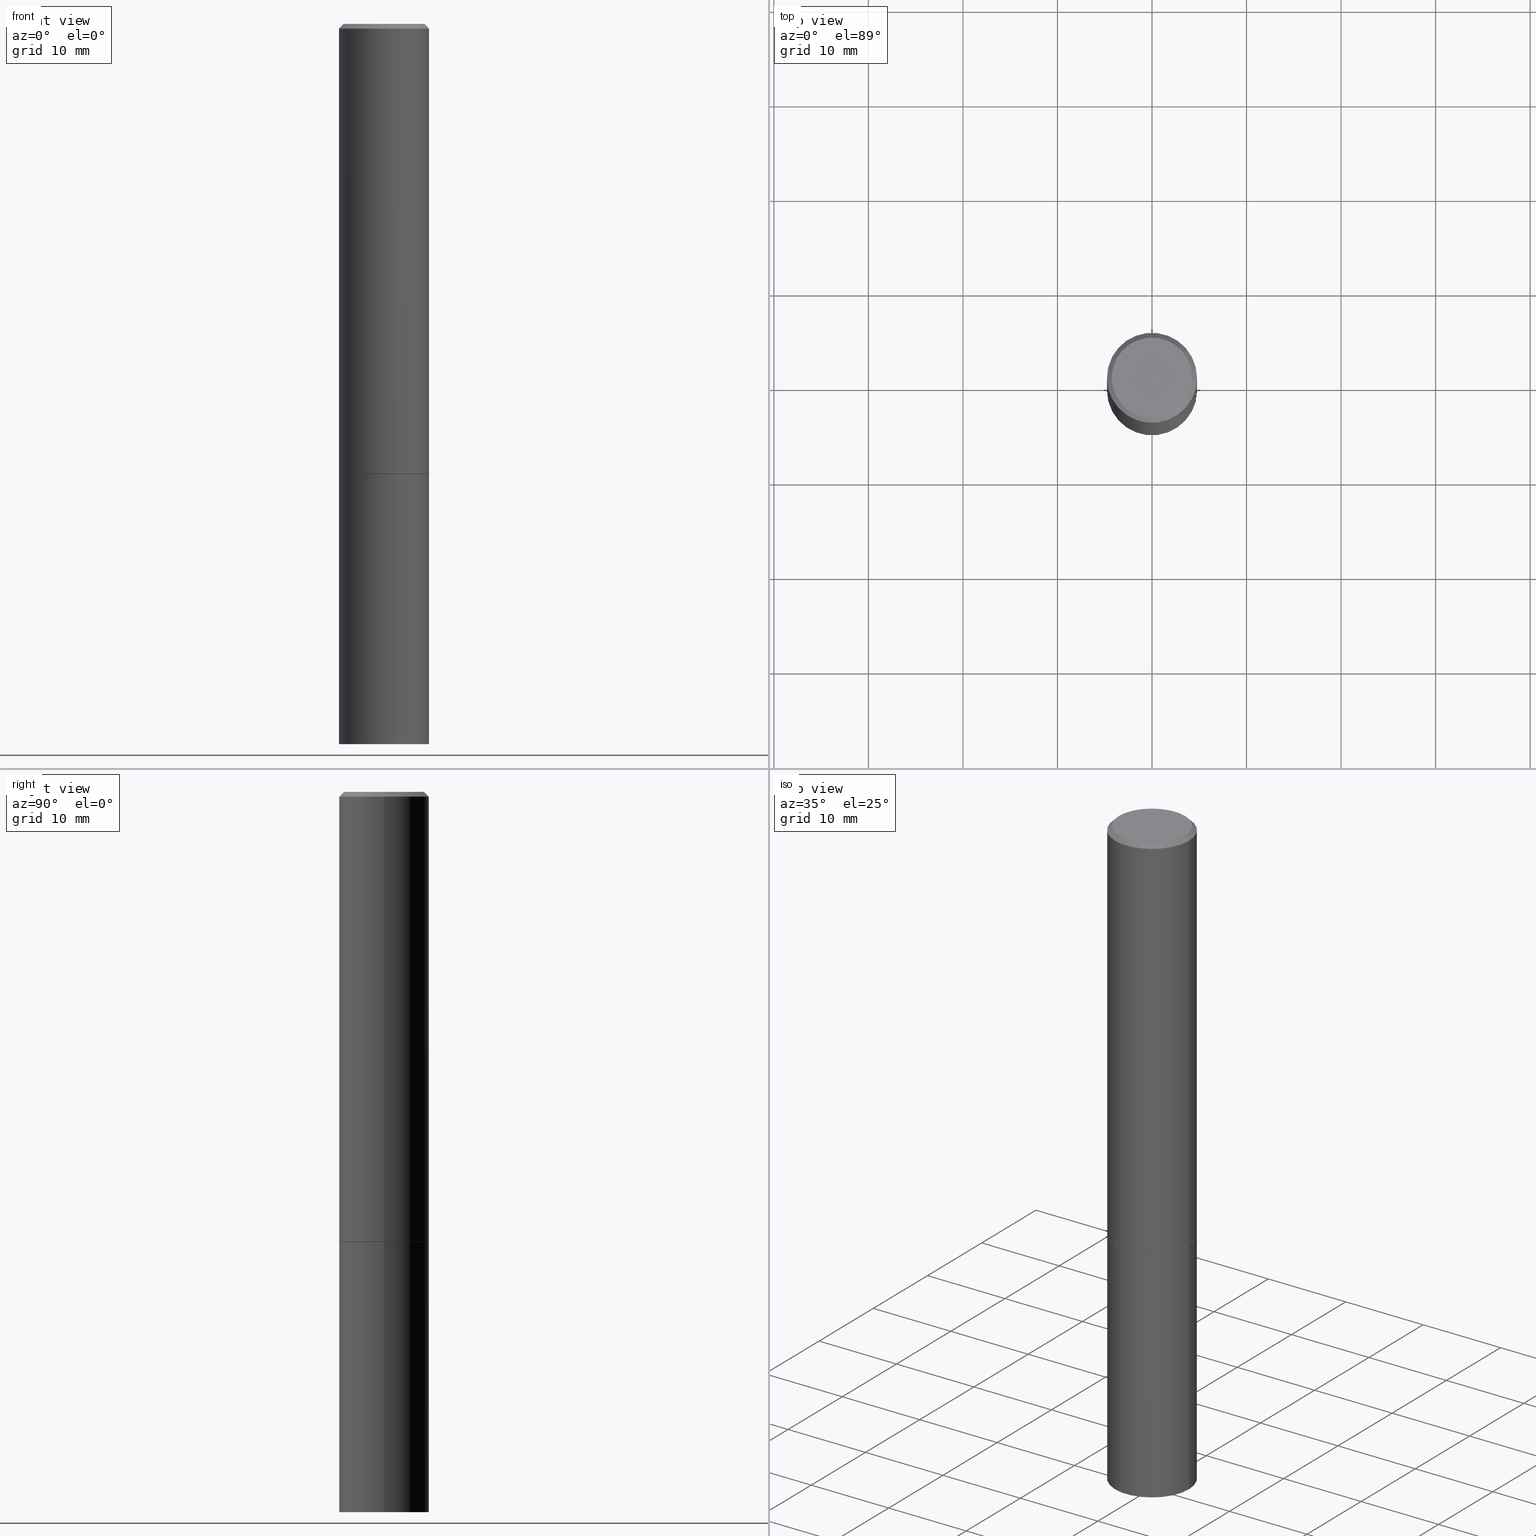
[diagram: canonical four-view strip — front | top / right | iso, engineering-drawing reading convention]
A machine part, canonical four-view strip (front | top / right | iso — engineering-drawing reading convention). The complete STEP part file that produces these views, byte-faithful:
ISO-10303-21;
HEADER;
FILE_DESCRIPTION (( 'STEP AP203' ),
    '1' );
FILE_NAME ('31854.STEP',
    '2024-02-27T13:50:10',
    ( '' ),
    ( '' ),
    'SwSTEP 2.0',
    'SolidWorks 2023',
    '' );
FILE_SCHEMA (( 'CONFIG_CONTROL_DESIGN' ));
ENDSEC;

DATA;
#1 = APPROVAL ( #317, 'UNSPECIFIED' ) ;
#2 = CIRCLE ( 'NONE', #280, 0.1875000000000000278 ) ;
#3 = AXIS2_PLACEMENT_3D ( 'NONE', #56, #360, #201 ) ;
#4 = APPROVAL_STATUS ( 'not_yet_approved' ) ;
#5 = EDGE_LOOP ( 'NONE', ( #300, #191 ) ) ;
#6 = ORIENTED_EDGE ( 'NONE', *, *, #144, .T. ) ;
#7 = AXIS2_PLACEMENT_3D ( 'NONE', #55, #22, #329 ) ;
#8 = CC_DESIGN_APPROVAL ( #27, ( #85 ) ) ;
#9 = VERTEX_POINT ( 'NONE', #347 ) ;
#10 = CARTESIAN_POINT ( 'NONE',  ( 4.890937612370283668E-31, -6.982962677686305168E-17, -0.02000000000000004205 ) ) ;
#11 = ADVANCED_FACE ( 'NONE', ( #156 ), #263, .T. ) ;
#12 = DATE_AND_TIME ( #345, #106 ) ;
#13 = ORIENTED_EDGE ( 'NONE', *, *, #34, .T. ) ;
#14 = AXIS2_PLACEMENT_3D ( 'NONE', #361, #252, #111 ) ;
#15 = VERTEX_POINT ( 'NONE', #189 ) ;
#16 = PLANE ( 'NONE',  #172 ) ;
#17 = CARTESIAN_POINT ( 'NONE',  ( 4.890937612370283668E-31, -6.982962677686305168E-17, -0.02000000000000004205 ) ) ;
#18 = ORIENTED_EDGE ( 'NONE', *, *, #314, .F. ) ;
#19 = EDGE_CURVE ( 'NONE', #15, #348, #299, .T. ) ;
#20 = FACE_OUTER_BOUND ( 'NONE', #60, .T. ) ;
#21 = DIRECTION ( 'NONE',  ( 0.7071067811866320607, -2.468850131083142557E-15, 0.7071067811864629737 ) ) ;
#22 = DIRECTION ( 'NONE',  ( -2.445468806185136597E-29, 3.491481338843145583E-15, 1.000000000000000000 ) ) ;
#23 = CARTESIAN_POINT ( 'NONE',  ( 4.890937612370283668E-31, -6.982962677686305168E-17, -0.02000000000000004205 ) ) ;
#24 = AXIS2_PLACEMENT_3D ( 'NONE', #10, #128, #101 ) ;
#25 = FACE_OUTER_BOUND ( 'NONE', #157, .T. ) ;
#26 = PERSON_AND_ORGANIZATION ( #358, #220 ) ;
#27 = APPROVAL ( #4, 'UNSPECIFIED' ) ;
#28 = CARTESIAN_POINT ( 'NONE',  ( 0.1875000000000000278, -7.855833012397073715E-15, -1.875000000000000000 ) ) ;
#29 = CARTESIAN_POINT ( 'NONE',  ( -0.1674999999999997879, 1.204561061900879272E-15, -8.301862719484101980E-30 ) ) ;
#30 = PERSON_AND_ORGANIZATION_ROLE ( 'classification_officer' ) ;
#31 = CONICAL_SURFACE ( 'NONE', #14, 0.1864999999999999714, 0.7853981633975678500 ) ;
#32 = EDGE_CURVE ( 'NONE', #249, #50, #131, .T. ) ;
#33 = PERSON_AND_ORGANIZATION ( #358, #220 ) ;
#34 = EDGE_CURVE ( 'NONE', #130, #246, #68, .T. ) ;
#35 = ORIENTED_EDGE ( 'NONE', *, *, #342, .F. ) ;
#36 = FACE_OUTER_BOUND ( 'NONE', #215, .T. ) ;
#37 = CYLINDRICAL_SURFACE ( 'NONE', #328, 0.1875000000000000278 ) ;
#38 = DIRECTION ( 'NONE',  ( -2.445468806185136597E-29, 3.491481338843145583E-15, 1.000000000000000000 ) ) ;
#39 = EDGE_LOOP ( 'NONE', ( #122, #107, #166, #235 ) ) ;
#40 = ORIENTED_EDGE ( 'NONE', *, *, #74, .T. ) ;
#41 = CARTESIAN_POINT ( 'NONE',  ( 0.1864999999999999714, -7.848850049719386123E-15, -1.874999999999999778 ) ) ;
#42 = AXIS2_PLACEMENT_3D ( 'NONE', #251, #226, #308 ) ;
#43 = VERTEX_POINT ( 'NONE', #282 ) ;
#44 = CALENDAR_DATE ( 2024, 27, 2 ) ;
#45 = CARTESIAN_POINT ( 'NONE',  ( -0.1875000000000000278, 1.332267629550188046E-15, -9.223003294227947991E-30 ) ) ;
#46 = ORIENTED_EDGE ( 'NONE', *, *, #100, .T. ) ;
#47 = DESIGN_CONTEXT ( 'detailed design', #136, 'design' ) ;
#48 = MANIFOLD_SOLID_BREP ( 'Body-Move/Copy2[1]', #304 ) ;
#49 = DIRECTION ( 'NONE',  ( -2.445468806185136877E-29, 3.491481338843145188E-15, 1.000000000000000000 ) ) ;
#50 = VERTEX_POINT ( 'NONE', #29 ) ;
#51 = CYLINDRICAL_SURFACE ( 'NONE', #254, 0.1874999999999999167 ) ;
#52 = DIRECTION ( 'NONE',  ( 1.000000000000000000, -6.982962677686266711E-15, 0.000000000000000000 ) ) ;
#53 = CC_DESIGN_APPROVAL ( #274, ( #330 ) ) ;
#54 = EDGE_CURVE ( 'NONE', #15, #320, #146, .T. ) ;
#55 = CARTESIAN_POINT ( 'NONE',  ( 0.000000000000000000, 0.000000000000000000, 0.000000000000000000 ) ) ;
#56 = CARTESIAN_POINT ( 'NONE',  ( 0.000000000000000000, 0.000000000000000000, 0.000000000000000000 ) ) ;
#57 = CARTESIAN_POINT ( 'NONE',  ( -0.1864999999999999714, -5.221365308138311867E-15, -1.874999999999999778 ) ) ;
#58 = ADVANCED_FACE ( 'NONE', ( #363 ), #236, .T. ) ;
#59 = DIRECTION ( 'NONE',  ( -2.445468806185136877E-29, 3.491481338843145188E-15, 1.000000000000000000 ) ) ;
#60 = EDGE_LOOP ( 'NONE', ( #13, #6, #162, #97 ) ) ;
#61 = CIRCLE ( 'NONE', #234, 0.1874999999999997780 ) ;
#62 = APPROVAL_PERSON_ORGANIZATION ( #294, #1, #161 ) ;
#63 = FACE_OUTER_BOUND ( 'NONE', #81, .T. ) ;
#64 = APPLICATION_CONTEXT ( 'configuration controlled 3d designs of mechanical parts and assemblies' ) ;
#65 = EDGE_CURVE ( 'NONE', #135, #130, #255, .T. ) ;
#66 = VECTOR ( 'NONE', #285, 39.37007874015748143 ) ;
#67 = EDGE_LOOP ( 'NONE', ( #222, #180, #35, #182 ) ) ;
#68 = CIRCLE ( 'NONE', #305, 0.1875000000000000278 ) ;
#69 = APPROVAL_PERSON_ORGANIZATION ( #351, #274, #321 ) ;
#70 = DIRECTION ( 'NONE',  ( 0.7071067811865466846, -7.319954787623252890E-15, -0.7071067811865483499 ) ) ;
#71 = COORDINATED_UNIVERSAL_TIME_OFFSET ( 5, 0, .BEHIND. ) ;
#72 = CARTESIAN_POINT ( 'NONE',  ( 0.000000000000000000, 0.000000000000000000, 0.000000000000000000 ) ) ;
#73 = DIRECTION ( 'NONE',  ( 0.000000000000000000, 0.000000000000000000, 1.000000000000000000 ) ) ;
#74 = EDGE_CURVE ( 'NONE', #130, #43, #202, .T. ) ;
#75 = VECTOR ( 'NONE', #80, 39.37007874015748143 ) ;
#76 = ORIENTED_EDGE ( 'NONE', *, *, #118, .F. ) ;
#77 = LOCAL_TIME ( 8, 50, 10.00000000000000000, #99 ) ;
#78 = DIRECTION ( 'NONE',  ( 1.000000000000000000, 0.000000000000000000, 0.000000000000000000 ) ) ;
#79 = VERTEX_POINT ( 'NONE', #134 ) ;
#80 = DIRECTION ( 'NONE',  ( -0.7071067811865466846, 2.468850131082247989E-15, -0.7071067811865483499 ) ) ;
#81 = EDGE_LOOP ( 'NONE', ( #266, #18 ) ) ;
#82 = CARTESIAN_POINT ( 'NONE',  ( 4.585254011597131119E-29, -6.546527510330898707E-15, -1.875000000000000000 ) ) ;
#83 = DIRECTION ( 'NONE',  ( 1.000000000000000000, -6.982962677686269077E-15, 0.000000000000000000 ) ) ;
#84 = CIRCLE ( 'NONE', #335, 0.1674999999999997879 ) ;
#85 = SECURITY_CLASSIFICATION ( '', '', #364 ) ;
#86 = DIRECTION ( 'NONE',  ( 1.000000000000000000, -6.982962677686265922E-15, 4.876176775795935793E-29 ) ) ;
#87 = DIRECTION ( 'NONE',  ( 1.000000000000000000, -6.982962677686266711E-15, 0.000000000000000000 ) ) ;
#88 = DATE_AND_TIME ( #333, #141 ) ;
#89 = DIRECTION ( 'NONE',  ( 1.000000000000000000, -6.982962677686265133E-15, 0.000000000000000000 ) ) ;
#90 = PERSON_AND_ORGANIZATION ( #358, #220 ) ;
#91 = AXIS2_PLACEMENT_3D ( 'NONE', #259, #165, #286 ) ;
#92 = ADVANCED_FACE ( 'NONE', ( #25 ), #31, .T. ) ;
#93 = CIRCLE ( 'NONE', #42, 0.1864999999999999714 ) ;
#94 = CC_DESIGN_DATE_AND_TIME_ASSIGNMENT ( #158, #221, ( #85 ) ) ;
#95 = DIRECTION ( 'NONE',  ( 1.000000000000000000, -6.982962677686266711E-15, 0.000000000000000000 ) ) ;
#96 = CONICAL_SURFACE ( 'NONE', #316, 0.1864999999999999714, 0.7853981633975678500 ) ;
#97 = ORIENTED_EDGE ( 'NONE', *, *, #74, .F. ) ;
#98 = SHAPE_DEFINITION_REPRESENTATION ( #229, #243 ) ;
#99 = COORDINATED_UNIVERSAL_TIME_OFFSET ( 5, 0, .BEHIND. ) ;
#100 = EDGE_CURVE ( 'NONE', #79, #43, #115, .T. ) ;
#101 = DIRECTION ( 'NONE',  ( -1.000000000000000000, 6.982962677686265133E-15, 0.000000000000000000 ) ) ;
#102 = ORIENTED_EDGE ( 'NONE', *, *, #54, .F. ) ;
#103 = CARTESIAN_POINT ( 'NONE',  ( -0.1875000000000000278, -7.178218133879978893E-15, -1.875000000000000000 ) ) ;
#104 = AXIS2_PLACEMENT_3D ( 'NONE', #319, #153, #95 ) ;
#105 = LINE ( 'NONE', #210, #75 ) ;
#106 = LOCAL_TIME ( 8, 50, 10.00000000000000000, #271 ) ;
#107 = ORIENTED_EDGE ( 'NONE', *, *, #54, .T. ) ;
#108 = ADVANCED_FACE ( 'NONE', ( #227 ), #96, .T. ) ;
#109 = LINE ( 'NONE', #57, #66 ) ;
#110 = ORIENTED_EDGE ( 'NONE', *, *, #314, .T. ) ;
#111 = DIRECTION ( 'NONE',  ( 1.000000000000000000, -6.982962677686269077E-15, 0.000000000000000000 ) ) ;
#112 = CYLINDRICAL_SURFACE ( 'NONE', #3, 0.1875000000000000278 ) ;
#113 = DIRECTION ( 'NONE',  ( 1.000000000000000000, -6.982962677686261189E-15, 0.000000000000000000 ) ) ;
#114 = DIRECTION ( 'NONE',  ( -1.000000000000000000, 6.982962677686265133E-15, 0.000000000000000000 ) ) ;
#115 = CIRCLE ( 'NONE', #178, 0.1874999999999997780 ) ;
#116 = ADVANCED_FACE ( 'NONE', ( #175 ), #313, .F. ) ;
#117 = ORIENTED_EDGE ( 'NONE', *, *, #144, .F. ) ;
#118 = EDGE_CURVE ( 'NONE', #50, #79, #105, .T. ) ;
#119 = AXIS2_PLACEMENT_3D ( 'NONE', #138, #261, #258 ) ;
#120 = ORIENTED_EDGE ( 'NONE', *, *, #232, .F. ) ;
#121 = ORIENTED_EDGE ( 'NONE', *, *, #32, .T. ) ;
#122 = ORIENTED_EDGE ( 'NONE', *, *, #19, .F. ) ;
#123 = ORIENTED_EDGE ( 'NONE', *, *, #126, .T. ) ;
#124 = VECTOR ( 'NONE', #70, 39.37007874015748143 ) ;
#125 = LOCAL_TIME ( 8, 50, 10.00000000000000000, #223 ) ;
#126 = EDGE_CURVE ( 'NONE', #50, #249, #84, .T. ) ;
#127 = ORIENTED_EDGE ( 'NONE', *, *, #256, .T. ) ;
#128 = DIRECTION ( 'NONE',  ( 2.445468806185136597E-29, -3.491481338843145583E-15, -1.000000000000000000 ) ) ;
#129 = ORIENTED_EDGE ( 'NONE', *, *, #211, .T. ) ;
#130 = VERTEX_POINT ( 'NONE', #151 ) ;
#131 = CIRCLE ( 'NONE', #91, 0.1674999999999997879 ) ;
#132 = LINE ( 'NONE', #353, #124 ) ;
#133 = CC_DESIGN_APPROVAL ( #1, ( #207 ) ) ;
#134 = CARTESIAN_POINT ( 'NONE',  ( -0.1874999999999997780, 1.239475875289310330E-15, -0.02000000000000004205 ) ) ;
#135 = VERTEX_POINT ( 'NONE', #41 ) ;
#136 = APPLICATION_CONTEXT ( 'configuration controlled 3d designs of mechanical parts and assemblies' ) ;
#137 = DIRECTION ( 'NONE',  ( 1.000000000000000000, -6.982962677686265133E-15, 0.000000000000000000 ) ) ;
#138 = CARTESIAN_POINT ( 'NONE',  ( 7.336406418555409790E-29, -1.047444401652943635E-14, -3.000000000000000444 ) ) ;
#139 = DIRECTION ( 'NONE',  ( 2.445468806185136597E-29, -3.491481338843145583E-15, -1.000000000000000000 ) ) ;
#140 = CC_DESIGN_DATE_AND_TIME_ASSIGNMENT ( #341, #240, ( #330 ) ) ;
#141 = LOCAL_TIME ( 8, 50, 10.00000000000000000, #71 ) ;
#142 = DIRECTION ( 'NONE',  ( -2.445468806185136597E-29, 3.491481338843145583E-15, 1.000000000000000000 ) ) ;
#143 = DIRECTION ( 'NONE',  ( -2.445468806185136597E-29, 3.491481338843145583E-15, 1.000000000000000000 ) ) ;
#144 = EDGE_CURVE ( 'NONE', #246, #79, #315, .T. ) ;
#145 = CLOSED_SHELL ( 'NONE', ( #92, #176, #58, #11, #250, #108, #217, #264 ) ) ;
#146 = CIRCLE ( 'NONE', #219, 0.1875000000000000278 ) ;
#147 = DIRECTION ( 'NONE',  ( 2.438088387897960049E-29, -3.491481338843145188E-15, -1.000000000000000000 ) ) ;
#148 = ORIENTED_EDGE ( 'NONE', *, *, #100, .F. ) ;
#149 = CIRCLE ( 'NONE', #203, 0.1875000000000000278 ) ;
#150 = EDGE_CURVE ( 'NONE', #320, #218, #163, .T. ) ;
#151 = CARTESIAN_POINT ( 'NONE',  ( 0.1875000000000000278, -7.852341531058230708E-15, -1.874000000000000110 ) ) ;
#152 = ORIENTED_EDGE ( 'NONE', *, *, #296, .F. ) ;
#153 = DIRECTION ( 'NONE',  ( -2.445468806185136597E-29, 3.491481338843145583E-15, 1.000000000000000000 ) ) ;
#154 = AXIS2_PLACEMENT_3D ( 'NONE', #179, #147, #270 ) ;
#155 = COORDINATED_UNIVERSAL_TIME_OFFSET ( 5, 0, .BEHIND. ) ;
#156 = FACE_OUTER_BOUND ( 'NONE', #352, .T. ) ;
#157 = EDGE_LOOP ( 'NONE', ( #129, #186, #303, #225 ) ) ;
#158 = DATE_AND_TIME ( #44, #199 ) ;
#159 = DIRECTION ( 'NONE',  ( -2.445468806185136877E-29, 3.491481338843145188E-15, 1.000000000000000000 ) ) ;
#160 = EDGE_CURVE ( 'NONE', #249, #43, #132, .T. ) ;
#161 = APPROVAL_ROLE ( '' ) ;
#162 = ORIENTED_EDGE ( 'NONE', *, *, #256, .F. ) ;
#163 = LINE ( 'NONE', #238, #359 ) ;
#164 = CARTESIAN_POINT ( 'NONE',  ( 0.000000000000000000, 0.000000000000000000, 0.000000000000000000 ) ) ;
#165 = DIRECTION ( 'NONE',  ( -2.445468806185136597E-29, 3.491481338843145583E-15, 1.000000000000000000 ) ) ;
#166 = ORIENTED_EDGE ( 'NONE', *, *, #150, .T. ) ;
#167 = DIRECTION ( 'NONE',  ( 1.000000000000000000, -6.982962677686265922E-15, 4.876176775795935793E-29 ) ) ;
#168 = ADVANCED_FACE ( 'NONE', ( #181 ), #37, .T. ) ;
#169 = DIRECTION ( 'NONE',  ( -1.000000000000000000, 6.982962677686265922E-15, -4.876176775795935793E-29 ) ) ;
#170 = CYLINDRICAL_SURFACE ( 'NONE', #7, 0.1874999999999999167 ) ;
#171 = VECTOR ( 'NONE', #49, 39.37007874015748143 ) ;
#172 = AXIS2_PLACEMENT_3D ( 'NONE', #253, #306, #169 ) ;
#173 = APPROVAL_DATE_TIME ( #88, #1 ) ;
#174 = DIRECTION ( 'NONE',  ( -2.438088387897960049E-29, 3.491481338843145188E-15, 1.000000000000000000 ) ) ;
#175 = FACE_OUTER_BOUND ( 'NONE', #5, .T. ) ;
#176 = ADVANCED_FACE ( 'NONE', ( #20 ), #170, .T. ) ;
#177 = PERSON_AND_ORGANIZATION ( #358, #220 ) ;
#178 = AXIS2_PLACEMENT_3D ( 'NONE', #17, #334, #89 ) ;
#179 = CARTESIAN_POINT ( 'NONE',  ( 1.309305502066220959E-15, 0.1874999999999934497, -1.875000000000000666 ) ) ;
#180 = ORIENTED_EDGE ( 'NONE', *, *, #19, .T. ) ;
#181 = FACE_OUTER_BOUND ( 'NONE', #67, .T. ) ;
#182 = ORIENTED_EDGE ( 'NONE', *, *, #150, .F. ) ;
#183 = DIRECTION ( 'NONE',  ( 1.000000000000000000, -6.982962677686266711E-15, 4.876176775795935793E-29 ) ) ;
#184 = MECHANICAL_CONTEXT ( 'NONE', #64, 'mechanical' ) ;
#185 = UNCERTAINTY_MEASURE_WITH_UNIT (LENGTH_MEASURE( 1.000000000000000082E-05 ), #214, 'distance_accuracy_value', 'NONE');
#186 = ORIENTED_EDGE ( 'NONE', *, *, #232, .T. ) ;
#187 = AXIS2_PLACEMENT_3D ( 'NONE', #23, #139, #114 ) ;
#188 = EDGE_CURVE ( 'NONE', #320, #15, #287, .T. ) ;
#189 = CARTESIAN_POINT ( 'NONE',  ( -0.1875000000000000278, -7.178218133879978893E-15, -3.000000000000000444 ) ) ;
#190 = PERSON_AND_ORGANIZATION_ROLE ( 'creator' ) ;
#191 = ORIENTED_EDGE ( 'NONE', *, *, #357, .T. ) ;
#192 = LENGTH_MEASURE_WITH_UNIT ( LENGTH_MEASURE( 0.02539999999999999897 ), #344 );
#193 = DIRECTION ( 'NONE',  ( -2.445468806185136597E-29, 3.491481338843145583E-15, 1.000000000000000000 ) ) ;
#194 = CALENDAR_DATE ( 2024, 27, 2 ) ;
#195 = EDGE_LOOP ( 'NONE', ( #120, #110, #277, #152 ) ) ;
#196 = CARTESIAN_POINT ( 'NONE',  ( -0.1874999999999999722, -1.974165198334270073E-15, -1.874000000000000110 ) ) ;
#197 = EDGE_LOOP ( 'NONE', ( #354, #322, #127, #76 ) ) ;
#198 = VECTOR ( 'NONE', #21, 39.37007874015748143 ) ;
#199 = LOCAL_TIME ( 8, 50, 10.00000000000000000, #155 ) ;
#200 =( NAMED_UNIT ( * ) SI_UNIT ( $, .STERADIAN. ) SOLID_ANGLE_UNIT ( ) );
#201 = DIRECTION ( 'NONE',  ( 1.000000000000000000, -6.982962677686265922E-15, 4.876176775795935793E-29 ) ) ;
#202 = LINE ( 'NONE', #355, #206 ) ;
#203 = AXIS2_PLACEMENT_3D ( 'NONE', #209, #38, #323 ) ;
#204 = CC_DESIGN_SECURITY_CLASSIFICATION ( #85, ( #207 ) ) ;
#205 = DIRECTION ( 'NONE',  ( -2.445468806185136597E-29, 3.491481338843145583E-15, 1.000000000000000000 ) ) ;
#206 = VECTOR ( 'NONE', #59, 39.37007874015748143 ) ;
#207 = PRODUCT_DEFINITION_FORMATION_WITH_SPECIFIED_SOURCE ( 'ANY', '', #257, .NOT_KNOWN. ) ;
#208 = CC_DESIGN_PERSON_AND_ORGANIZATION_ASSIGNMENT ( #298, #190, ( #330 ) ) ;
#209 = CARTESIAN_POINT ( 'NONE',  ( 4.585254011597131119E-29, -6.546527510330898707E-15, -1.875000000000000000 ) ) ;
#210 = CARTESIAN_POINT ( 'NONE',  ( -0.1874999999999997780, 1.239475875289310330E-15, -0.02000000000000004205 ) ) ;
#211 = EDGE_CURVE ( 'NONE', #135, #9, #93, .T. ) ;
#212 = CALENDAR_DATE ( 2024, 27, 2 ) ;
#213 = EDGE_LOOP ( 'NONE', ( #117, #283, #40, #148 ) ) ;
#214 =( CONVERSION_BASED_UNIT ( 'INCH', #192 ) LENGTH_UNIT ( ) NAMED_UNIT ( #244 ) );
#215 = EDGE_LOOP ( 'NONE', ( #338, #102 ) ) ;
#216 = APPROVAL_DATE_TIME ( #239, #274 ) ;
#217 = ADVANCED_FACE ( 'NONE', ( #63 ), #233, .F. ) ;
#218 = VERTEX_POINT ( 'NONE', #28 ) ;
#219 = AXIS2_PLACEMENT_3D ( 'NONE', #337, #289, #113 ) ;
#220 = ORGANIZATION ( 'UNSPECIFIED', 'UNSPECIFIED', '' ) ;
#221 = DATE_TIME_ROLE ( 'classification_date' ) ;
#222 = ORIENTED_EDGE ( 'NONE', *, *, #188, .T. ) ;
#223 = COORDINATED_UNIVERSAL_TIME_OFFSET ( 5, 0, .BEHIND. ) ;
#224 = FACE_OUTER_BOUND ( 'NONE', #213, .T. ) ;
#225 = ORIENTED_EDGE ( 'NONE', *, *, #65, .F. ) ;
#226 = DIRECTION ( 'NONE',  ( -2.445468806185136597E-29, 3.491481338843145583E-15, 1.000000000000000000 ) ) ;
#227 = FACE_OUTER_BOUND ( 'NONE', #195, .T. ) ;
#228 = CARTESIAN_POINT ( 'NONE',  ( 0.1674999999999997879, -1.252653207992876908E-15, 8.469775550109228175E-30 ) ) ;
#229 = PRODUCT_DEFINITION_SHAPE ( 'NONE', 'NONE',  #330 ) ;
#230 = CARTESIAN_POINT ( 'NONE',  ( 4.582808542790945516E-29, -6.543036028992054911E-15, -1.874000000000000110 ) ) ;
#231 = CARTESIAN_POINT ( 'NONE',  ( 4.582808542790945516E-29, -6.543036028992054911E-15, -1.874000000000000110 ) ) ;
#232 = EDGE_CURVE ( 'NONE', #9, #246, #109, .T. ) ;
#233 = PLANE ( 'NONE',  #310 ) ;
#234 = AXIS2_PLACEMENT_3D ( 'NONE', #281, #325, #137 ) ;
#235 = ORIENTED_EDGE ( 'NONE', *, *, #357, .F. ) ;
#236 = CONICAL_SURFACE ( 'NONE', #187, 0.1874999999999997780, 0.7853981633974471688 ) ;
#237 = DIRECTION ( 'NONE',  ( -1.000000000000000000, 6.982962677686265922E-15, -4.876176775795935793E-29 ) ) ;
#238 = CARTESIAN_POINT ( 'NONE',  ( 0.1875000000000000278, -1.309305502066175008E-15, 9.142831454617381013E-30 ) ) ;
#239 = DATE_AND_TIME ( #212, #77 ) ;
#240 = DATE_TIME_ROLE ( 'creation_date' ) ;
#241 = CC_DESIGN_PERSON_AND_ORGANIZATION_ASSIGNMENT ( #90, #262, ( #207 ) ) ;
#242 = ORIENTED_EDGE ( 'NONE', *, *, #118, .T. ) ;
#243 = ADVANCED_BREP_SHAPE_REPRESENTATION ( '31854', ( #48, #292, #248 ), #343 ) ;
#244 = DIMENSIONAL_EXPONENTS ( 1.000000000000000000, 0.000000000000000000, 0.000000000000000000, 0.000000000000000000, 0.000000000000000000, 0.000000000000000000, 0.000000000000000000 ) ;
#245 = APPROVAL_STATUS ( 'not_yet_approved' ) ;
#246 = VERTEX_POINT ( 'NONE', #196 ) ;
#247 = AXIS2_PLACEMENT_3D ( 'NONE', #295, #301, #237 ) ;
#248 = AXIS2_PLACEMENT_3D ( 'NONE', #164, #73, #78 ) ;
#249 = VERTEX_POINT ( 'NONE', #228 ) ;
#250 = ADVANCED_FACE ( 'NONE', ( #224 ), #51, .T. ) ;
#251 = CARTESIAN_POINT ( 'NONE',  ( 4.585254011597130558E-29, -6.546527510330897918E-15, -1.874999999999999778 ) ) ;
#252 = DIRECTION ( 'NONE',  ( -2.445468806185136597E-29, 3.491481338843145583E-15, 1.000000000000000000 ) ) ;
#253 = CARTESIAN_POINT ( 'NONE',  ( 1.169646248512448215E-15, 0.1674999999999997879, -5.848231242562260795E-16 ) ) ;
#254 = AXIS2_PLACEMENT_3D ( 'NONE', #284, #143, #86 ) ;
#255 = LINE ( 'NONE', #332, #198 ) ;
#256 = EDGE_CURVE ( 'NONE', #43, #79, #61, .T. ) ;
#257 = PRODUCT ( '31854', '31854', '', ( #184 ) ) ;
#258 = DIRECTION ( 'NONE',  ( 1.000000000000000000, -6.982962677686261189E-15, 0.000000000000000000 ) ) ;
#259 = CARTESIAN_POINT ( 'NONE',  ( 0.000000000000000000, 0.000000000000000000, 0.000000000000000000 ) ) ;
#260 = PERSON_AND_ORGANIZATION_ROLE ( 'creator' ) ;
#261 = DIRECTION ( 'NONE',  ( -2.445468806185136597E-29, 3.491481338843145583E-15, 1.000000000000000000 ) ) ;
#262 = PERSON_AND_ORGANIZATION_ROLE ( 'design_supplier' ) ;
#263 = CONICAL_SURFACE ( 'NONE', #24, 0.1874999999999997780, 0.7853981633974471688 ) ;
#264 = ADVANCED_FACE ( 'NONE', ( #302 ), #16, .F. ) ;
#265 = CIRCLE ( 'NONE', #104, 0.1875000000000000278 ) ;
#266 = ORIENTED_EDGE ( 'NONE', *, *, #211, .F. ) ;
#267 = APPROVAL_PERSON_ORGANIZATION ( #33, #27, #293 ) ;
#268 = PLANE ( 'NONE',  #247 ) ;
#269 =( NAMED_UNIT ( * ) PLANE_ANGLE_UNIT ( ) SI_UNIT ( $, .RADIAN. ) );
#270 = DIRECTION ( 'NONE',  ( -1.000000000000000000, 6.982962677686265922E-15, -4.876176775795935793E-29 ) ) ;
#271 = COORDINATED_UNIVERSAL_TIME_OFFSET ( 5, 0, .BEHIND. ) ;
#272 = AXIS2_PLACEMENT_3D ( 'NONE', #362, #205, #340 ) ;
#273 = DIRECTION ( 'NONE',  ( -2.445468806185136877E-29, 3.491481338843145188E-15, 1.000000000000000000 ) ) ;
#274 = APPROVAL ( #245, 'UNSPECIFIED' ) ;
#275 = APPLICATION_PROTOCOL_DEFINITION ( 'international standard', 'config_control_design', 1994, #64 ) ;
#276 = APPLICATION_PROTOCOL_DEFINITION ( 'international standard', 'config_control_design', 1994, #136 ) ;
#277 = ORIENTED_EDGE ( 'NONE', *, *, #65, .T. ) ;
#278 = PERSON_AND_ORGANIZATION_ROLE ( 'design_owner' ) ;
#279 = ADVANCED_FACE ( 'NONE', ( #356 ), #112, .T. ) ;
#280 = AXIS2_PLACEMENT_3D ( 'NONE', #230, #331, #87 ) ;
#281 = CARTESIAN_POINT ( 'NONE',  ( 4.890937612370283668E-31, -6.982962677686305168E-17, -0.02000000000000004205 ) ) ;
#282 = CARTESIAN_POINT ( 'NONE',  ( 0.1874999999999997780, -1.356173001359023691E-15, -0.02000000000000004205 ) ) ;
#283 = ORIENTED_EDGE ( 'NONE', *, *, #296, .T. ) ;
#284 = CARTESIAN_POINT ( 'NONE',  ( 0.000000000000000000, 0.000000000000000000, 0.000000000000000000 ) ) ;
#285 = DIRECTION ( 'NONE',  ( -0.7071067811866320607, 7.493145998870660238E-15, 0.7071067811864629737 ) ) ;
#286 = DIRECTION ( 'NONE',  ( 1.000000000000000000, -6.982962677686266711E-15, 4.876176775795935793E-29 ) ) ;
#287 = CIRCLE ( 'NONE', #119, 0.1875000000000000278 ) ;
#288 = CARTESIAN_POINT ( 'NONE',  ( 0.000000000000000000, 0.000000000000000000, 0.000000000000000000 ) ) ;
#289 = DIRECTION ( 'NONE',  ( -2.445468806185136597E-29, 3.491481338843145583E-15, 1.000000000000000000 ) ) ;
#290 = EDGE_LOOP ( 'NONE', ( #123, #121 ) ) ;
#291 = CC_DESIGN_PERSON_AND_ORGANIZATION_ASSIGNMENT ( #177, #30, ( #85 ) ) ;
#292 = MANIFOLD_SOLID_BREP ( 'Body-Move/Copy2[2]', #145 ) ;
#293 = APPROVAL_ROLE ( '' ) ;
#294 = PERSON_AND_ORGANIZATION ( #358, #220 ) ;
#295 = CARTESIAN_POINT ( 'NONE',  ( 1.309305502066248372E-15, 0.1874999999999895361, -3.000000000000000888 ) ) ;
#296 = EDGE_CURVE ( 'NONE', #246, #130, #2, .T. ) ;
#297 = CARTESIAN_POINT ( 'NONE',  ( -0.1874999999999999167, 1.332267629550187257E-15, -9.223003294227943787E-30 ) ) ;
#298 = PERSON_AND_ORGANIZATION ( #358, #220 ) ;
#299 = LINE ( 'NONE', #45, #339 ) ;
#300 = ORIENTED_EDGE ( 'NONE', *, *, #342, .T. ) ;
#301 = DIRECTION ( 'NONE',  ( 2.438088387897960049E-29, -3.491481338843145188E-15, -1.000000000000000000 ) ) ;
#302 = FACE_OUTER_BOUND ( 'NONE', #290, .T. ) ;
#303 = ORIENTED_EDGE ( 'NONE', *, *, #34, .F. ) ;
#304 = CLOSED_SHELL ( 'NONE', ( #168, #336, #116, #279 ) ) ;
#305 = AXIS2_PLACEMENT_3D ( 'NONE', #231, #309, #52 ) ;
#306 = DIRECTION ( 'NONE',  ( 2.438088387897960049E-29, -3.491481338843145188E-15, -1.000000000000000000 ) ) ;
#307 = CC_DESIGN_PERSON_AND_ORGANIZATION_ASSIGNMENT ( #26, #260, ( #207 ) ) ;
#308 = DIRECTION ( 'NONE',  ( 1.000000000000000000, -6.982962677686269077E-15, 0.000000000000000000 ) ) ;
#309 = DIRECTION ( 'NONE',  ( -2.445468806185136597E-29, 3.491481338843145583E-15, 1.000000000000000000 ) ) ;
#310 = AXIS2_PLACEMENT_3D ( 'NONE', #82, #174, #167 ) ;
#311 = DIRECTION ( 'NONE',  ( 1.000000000000000000, -6.982962677686265922E-15, 4.876176775795935793E-29 ) ) ;
#312 = CARTESIAN_POINT ( 'NONE',  ( 4.585254011597130558E-29, -6.546527510330897918E-15, -1.874999999999999778 ) ) ;
#313 = PLANE ( 'NONE',  #154 ) ;
#314 = EDGE_CURVE ( 'NONE', #9, #135, #365, .T. ) ;
#315 = LINE ( 'NONE', #297, #171 ) ;
#316 = AXIS2_PLACEMENT_3D ( 'NONE', #312, #327, #83 ) ;
#317 = APPROVAL_STATUS ( 'not_yet_approved' ) ;
#318 = CARTESIAN_POINT ( 'NONE',  ( 0.1875000000000000278, -1.178374951859561136E-14, -3.000000000000000444 ) ) ;
#319 = CARTESIAN_POINT ( 'NONE',  ( 4.585254011597131119E-29, -6.546527510330898707E-15, -1.875000000000000000 ) ) ;
#320 = VERTEX_POINT ( 'NONE', #318 ) ;
#321 = APPROVAL_ROLE ( '' ) ;
#322 = ORIENTED_EDGE ( 'NONE', *, *, #160, .T. ) ;
#323 = DIRECTION ( 'NONE',  ( 1.000000000000000000, -6.982962677686266711E-15, 0.000000000000000000 ) ) ;
#324 = ORIENTED_EDGE ( 'NONE', *, *, #160, .F. ) ;
#325 = DIRECTION ( 'NONE',  ( -2.445468806185136597E-29, 3.491481338843145583E-15, 1.000000000000000000 ) ) ;
#326 = PRODUCT_RELATED_PRODUCT_CATEGORY ( 'detail', '', ( #257 ) ) ;
#327 = DIRECTION ( 'NONE',  ( -2.445468806185136597E-29, 3.491481338843145583E-15, 1.000000000000000000 ) ) ;
#328 = AXIS2_PLACEMENT_3D ( 'NONE', #288, #142, #311 ) ;
#329 = DIRECTION ( 'NONE',  ( 1.000000000000000000, -6.982962677686265922E-15, 4.876176775795935793E-29 ) ) ;
#330 = PRODUCT_DEFINITION ( 'UNKNOWN', '', #207, #47 ) ;
#331 = DIRECTION ( 'NONE',  ( -2.445468806185136597E-29, 3.491481338843145583E-15, 1.000000000000000000 ) ) ;
#332 = CARTESIAN_POINT ( 'NONE',  ( 0.1864999999999999714, -7.848850049719386123E-15, -1.874999999999999778 ) ) ;
#333 = CALENDAR_DATE ( 2024, 27, 2 ) ;
#334 = DIRECTION ( 'NONE',  ( -2.445468806185136597E-29, 3.491481338843145583E-15, 1.000000000000000000 ) ) ;
#335 = AXIS2_PLACEMENT_3D ( 'NONE', #72, #193, #183 ) ;
#336 = ADVANCED_FACE ( 'NONE', ( #36 ), #268, .T. ) ;
#337 = CARTESIAN_POINT ( 'NONE',  ( 7.336406418555409790E-29, -1.047444401652943635E-14, -3.000000000000000444 ) ) ;
#338 = ORIENTED_EDGE ( 'NONE', *, *, #188, .F. ) ;
#339 = VECTOR ( 'NONE', #159, 39.37007874015748143 ) ;
#340 = DIRECTION ( 'NONE',  ( 1.000000000000000000, -6.982962677686269077E-15, 0.000000000000000000 ) ) ;
#341 = DATE_AND_TIME ( #194, #125 ) ;
#342 = EDGE_CURVE ( 'NONE', #218, #348, #265, .T. ) ;
#343 =( GEOMETRIC_REPRESENTATION_CONTEXT ( 3 ) GLOBAL_UNCERTAINTY_ASSIGNED_CONTEXT ( ( #185 ) ) GLOBAL_UNIT_ASSIGNED_CONTEXT ( ( #214, #269, #200 ) ) REPRESENTATION_CONTEXT ( 'NONE', 'WORKASPACE' ) );
#344 =( LENGTH_UNIT ( ) NAMED_UNIT ( * ) SI_UNIT ( $, .METRE. ) );
#345 = CALENDAR_DATE ( 2024, 27, 2 ) ;
#346 = PERSON_AND_ORGANIZATION ( #358, #220 ) ;
#347 = CARTESIAN_POINT ( 'NONE',  ( -0.1864999999999999714, -5.216066853790089465E-15, -1.874999999999999778 ) ) ;
#348 = VERTEX_POINT ( 'NONE', #103 ) ;
#349 = CC_DESIGN_PERSON_AND_ORGANIZATION_ASSIGNMENT ( #346, #278, ( #257 ) ) ;
#350 = APPROVAL_DATE_TIME ( #12, #27 ) ;
#351 = PERSON_AND_ORGANIZATION ( #358, #220 ) ;
#352 = EDGE_LOOP ( 'NONE', ( #324, #366, #242, #46 ) ) ;
#353 = CARTESIAN_POINT ( 'NONE',  ( 0.1874999999999997780, -1.356173001359023691E-15, -0.02000000000000004205 ) ) ;
#354 = ORIENTED_EDGE ( 'NONE', *, *, #32, .F. ) ;
#355 = CARTESIAN_POINT ( 'NONE',  ( 0.1874999999999999167, -1.309305502066174219E-15, 9.142831454617375408E-30 ) ) ;
#356 = FACE_OUTER_BOUND ( 'NONE', #39, .T. ) ;
#357 = EDGE_CURVE ( 'NONE', #348, #218, #149, .T. ) ;
#358 = PERSON ( 'UNSPECIFIED', 'UNSPECIFIED', 'UNSPECIFIED', ('UNSPECIFIED'), ('UNSPECIFIED'), ('UNSPECIFIED') ) ;
#359 = VECTOR ( 'NONE', #273, 39.37007874015748143 ) ;
#360 = DIRECTION ( 'NONE',  ( -2.445468806185136597E-29, 3.491481338843145583E-15, 1.000000000000000000 ) ) ;
#361 = CARTESIAN_POINT ( 'NONE',  ( 4.585254011597130558E-29, -6.546527510330897918E-15, -1.874999999999999778 ) ) ;
#362 = CARTESIAN_POINT ( 'NONE',  ( 4.585254011597130558E-29, -6.546527510330897918E-15, -1.874999999999999778 ) ) ;
#363 = FACE_OUTER_BOUND ( 'NONE', #197, .T. ) ;
#364 = SECURITY_CLASSIFICATION_LEVEL ( 'unclassified' ) ;
#365 = CIRCLE ( 'NONE', #272, 0.1864999999999999714 ) ;
#366 = ORIENTED_EDGE ( 'NONE', *, *, #126, .F. ) ;
ENDSEC;
END-ISO-10303-21;
